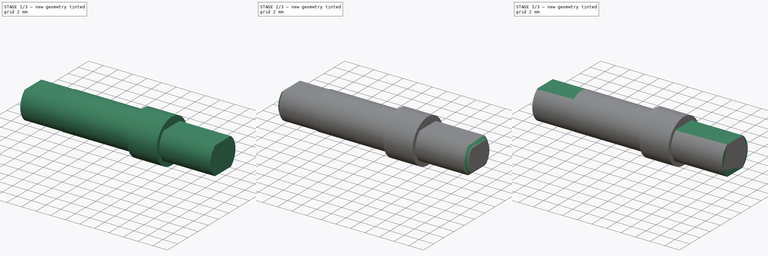
[diagram: build sequence overview — one tinted view per stage of 3, left to right]
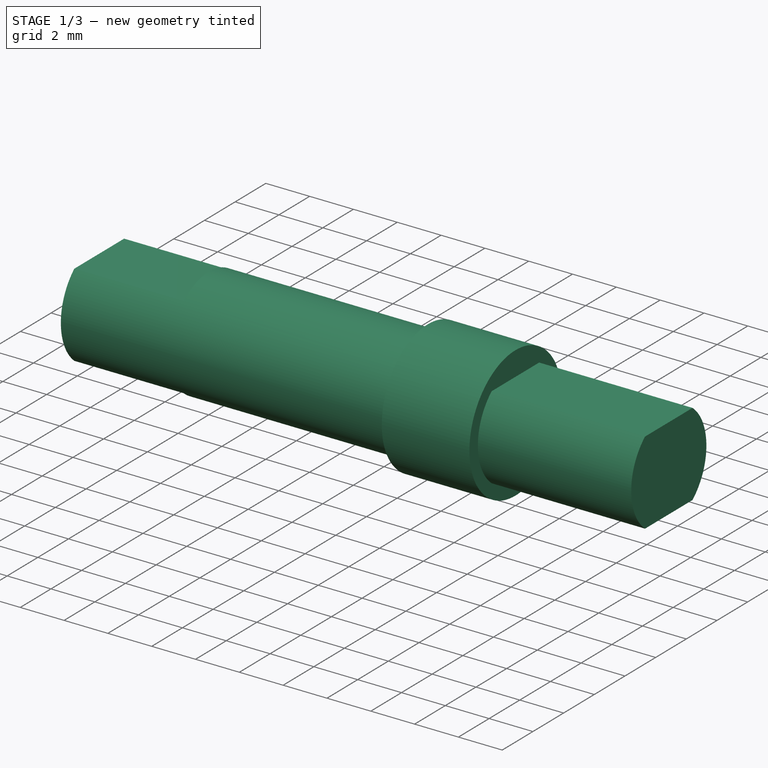
[diagram: stage 1 of 3 — iso view after this stage's code; geometry added in this stage tinted green]
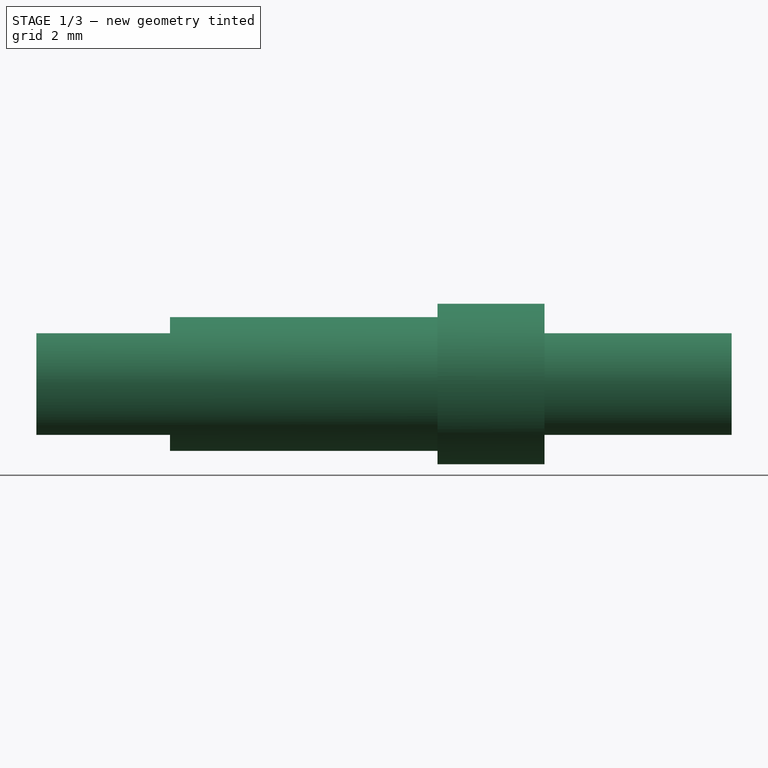
[diagram: stage 1 of 3 — front view after this stage's code; geometry added in this stage tinted green]
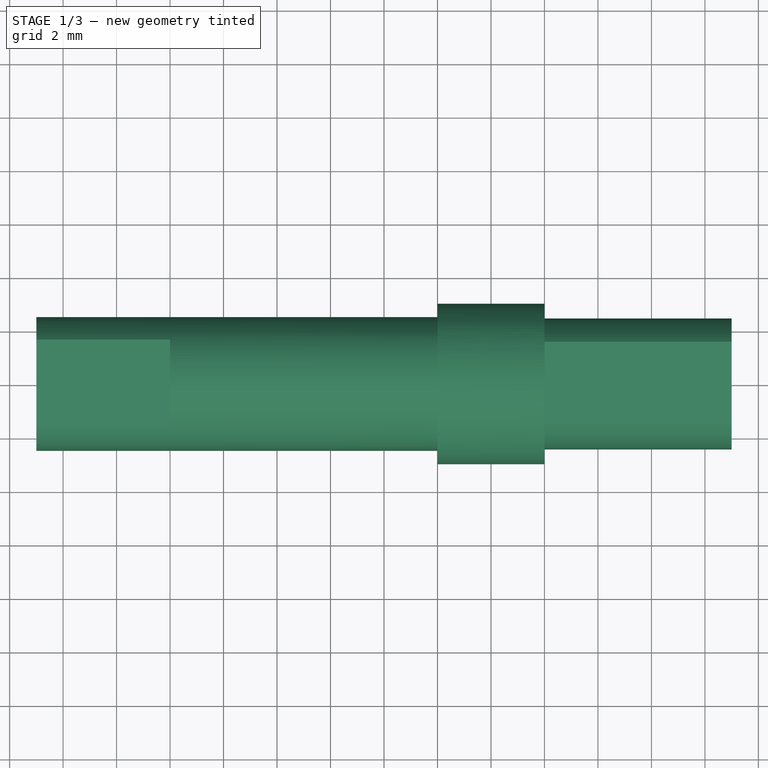
[diagram: stage 1 of 3 — top view after this stage's code; geometry added in this stage tinted green]
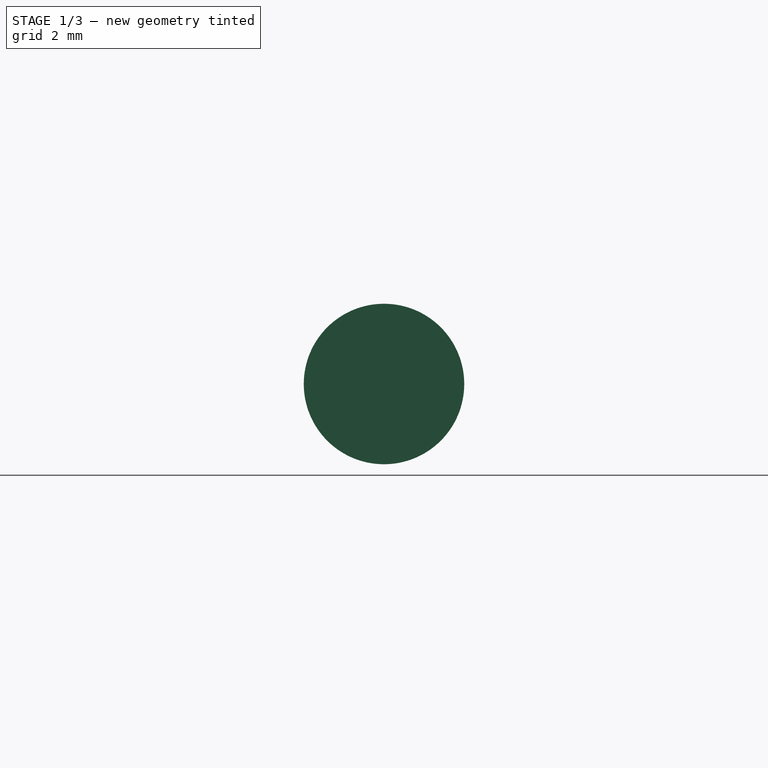
[diagram: stage 1 of 3 — right view after this stage's code; geometry added in this stage tinted green]
FCSTD DOCUMENT  (FreeCAD 2024.1R35694 (Git))
Label: shaft1
License: All rights reserved
LicenseURL: https://en.wikipedia.org/wiki/All_rights_reserved
objects: Sketcher::SketchObject×7, PartDesign::Pocket×5, PartDesign::Revolution×2, PartDesign::Body×2, PartDesign::Chamfer×1, PartDesign::Plane×1, App::Part×1
note: 26 computed .brp shape members not serialized (recipe doc carries the construction recipe); baked Part::Feature solids carry a one-line shape summary decoded from their .brp

FEATURE [PartDesign::Body] Body  label="shaft1_skel"
  Group = -> [Sketch,Revolution,Sketch001,Pocket,Sketch002,Pocket001]
  Origin = -> Origin001
  Tip = -> Pocket001
FEATURE [Sketcher::SketchObject] Sketch003
  FullyConstrained = true
  MapMode = 5
  Support = -> [XY_Plane002]
  sketch-geometry (8):
    g0: LineSegment StartX=7 StartY=0 StartZ=0 EndX=7 EndY=2.45 EndZ=0
    g1: LineSegment StartX=7 StartY=2.45 StartZ=0 EndX=0 EndY=2.45 EndZ=0
    g2: LineSegment StartX=0 StartY=2.45 StartZ=0 EndX=0 EndY=3 EndZ=0
    g3: LineSegment StartX=0 StartY=3 StartZ=0 EndX=-4 EndY=3 EndZ=0
    g4: LineSegment StartX=-4 StartY=3 StartZ=0 EndX=-4 EndY=2.5 EndZ=0
    g5: LineSegment StartX=-4 StartY=2.5 StartZ=0 EndX=-19 EndY=2.5 EndZ=0
    g6: LineSegment StartX=-19 StartY=2.5 StartZ=0 EndX=-19 EndY=0 EndZ=0
    g7: LineSegment StartX=-19 StartY=0 StartZ=0 EndX=7 EndY=0 EndZ=0
  constraints (24):
    c: PointOnObject(g0,g-1)
    c: Vertical(g0)
    c: Coincident(g0,g1)
    c: PointOnObject(g1,g-2)
    c: Horizontal(g1)
    c: Coincident(g1,g2)
    c: PointOnObject(g2,g-2)
    c: Coincident(g2,g3)
    c: Horizontal(g3)
    c: Coincident(g3,g4)
    c: Coincident(g4,g5)
    c: Horizontal(g5)
    c: Coincident(g5,g6)
    c: PointOnObject(g6,g-1)
    c: Coincident(g6,g7)
    c: Coincident(g7,g0)
    c: Vertical(g6)
    c: Vertical(g4)
    c: DistanceY(g-1,g0) = 2.45
    c: DistanceY(g-1,g2) = 3
    c: DistanceY(g6,g6) = 2.5
    c: DistanceX(g1,g1) = 7
    c: DistanceX(g3,g3) = 4
    c: DistanceX(g5,g5) = 15
FEATURE [PartDesign::Revolution] Revolution001
  Angle = 360
  Angle2 = 60
  Axis = (1,0,0)
  Base = (0,0,0)
  Profile = -> Sketch003
  ReferenceAxis = -> Sketch003 [H_Axis]
  Refine = true
  Type = 0
FEATURE [Sketcher::SketchObject] Sketch004
  FullyConstrained = true
  MapMode = 5
  Placement = pos=(-19,0,0) rot=(0.57735,-0.57735,-0.57735;2.0944rad)
  Support = -> [Revolution001]
  sketch-geometry (8):
    g0: LineSegment StartX=-5 StartY=6.9 StartZ=0 EndX=-5 EndY=1.9 EndZ=0
    g1: LineSegment StartX=-5 StartY=1.9 StartZ=0 EndX=5 EndY=1.9 EndZ=0
    g2: LineSegment StartX=5 StartY=1.9 StartZ=0 EndX=5 EndY=6.9 EndZ=0
    g3: LineSegment StartX=5 StartY=6.9 StartZ=0 EndX=-5 EndY=6.9 EndZ=0
    g4: LineSegment StartX=-5 StartY=-6.9 StartZ=0 EndX=5 EndY=-6.9 EndZ=0
    g5: LineSegment StartX=5 StartY=-6.9 StartZ=0 EndX=5 EndY=-1.9 EndZ=0
    g6: LineSegment StartX=5 StartY=-1.9 StartZ=0 EndX=-5 EndY=-1.9 EndZ=0
    g7: LineSegment StartX=-5 StartY=-1.9 StartZ=0 EndX=-5 EndY=-6.9 EndZ=0
  constraints (21):
    c: Coincident(g0,g1)
    c: Coincident(g1,g2)
    c: Coincident(g2,g3)
    c: Coincident(g3,g0)
    c: Vertical(g0)
    c: Vertical(g2)
    c: Horizontal(g3)
    c: Coincident(g4,g5)
    c: Coincident(g5,g6)
    c: Coincident(g6,g7)
    c: Coincident(g7,g4)
    c: Horizontal(g4)
    c: Vertical(g5)
    c: Vertical(g7)
    c: Symmetric(g1,g5,g-1)
    c: Symmetric(g0,g1,g-2)
    c: Symmetric(g6,g0,g-1)
    c: Equal(g2,g5)
    c: DistanceY(g5,g1) = 3.8
    c: DistanceY(g2,g2) = 5
    c: DistanceX(g3,g3) = 10
FEATURE [PartDesign::Pocket] Pocket002
  BaseFeature = -> Revolution001
  Direction = (1,0,0)
  Length = 5
  Length2 = 5
  Profile = -> Sketch004
  ReferenceAxis = -> Sketch004 [N_Axis]
  Refine = true
  Type = 0
FEATURE [Sketcher::SketchObject] Sketch005
  FullyConstrained = true
  MapMode = 5
  Placement = pos=(7,0,0) rot=(0.57735,0.57735,0.57735;2.0944rad)
  Support = -> [Pocket002]
  sketch-geometry (8):
    g0: LineSegment StartX=-5 StartY=1.9 StartZ=0 EndX=5 EndY=1.9 EndZ=0
    g1: LineSegment StartX=5 StartY=1.9 StartZ=0 EndX=5 EndY=6.9 EndZ=0
    g2: LineSegment StartX=5 StartY=6.9 StartZ=0 EndX=-5 EndY=6.9 EndZ=0
    g3: LineSegment StartX=-5 StartY=6.9 StartZ=0 EndX=-5 EndY=1.9 EndZ=0
    g4: LineSegment StartX=-5 StartY=-6.9 StartZ=0 EndX=5 EndY=-6.9 EndZ=0
    g5: LineSegment StartX=5 StartY=-6.9 StartZ=0 EndX=5 EndY=-1.9 EndZ=0
    g6: LineSegment StartX=5 StartY=-1.9 StartZ=0 EndX=-5 EndY=-1.9 EndZ=0
    g7: LineSegment StartX=-5 StartY=-1.9 StartZ=0 EndX=-5 EndY=-6.9 EndZ=0
  constraints (21):
    c: Coincident(g0,g1)
    c: Coincident(g1,g2)
    c: Coincident(g2,g3)
    c: Coincident(g3,g0)
    c: Horizontal(g0)
    c: Vertical(g1)
    c: Vertical(g3)
    c: Coincident(g4,g5)
    c: Coincident(g5,g6)
    c: Coincident(g6,g7)
    c: Coincident(g7,g4)
    c: Horizontal(g4)
    c: Vertical(g5)
    c: Vertical(g7)
    c: Symmetric(g0,g6,g-1)
    c: Symmetric(g0,g5,g-1)
    c: Symmetric(g2,g1,g-2)
    c: Equal(g1,g5)
    c: DistanceY(g5,g0) = 3.8
    c: DistanceY(g1,g1) = 5
    c: DistanceX(g2,g2) = 10
FEATURE [PartDesign::Pocket] Pocket003
  BaseFeature = -> Pocket002
  Direction = (-1,0,0)
  Length = 7
  Length2 = 5
  Profile = -> Sketch005
  ReferenceAxis = -> Sketch005 [N_Axis]
  Refine = true
  Type = 0
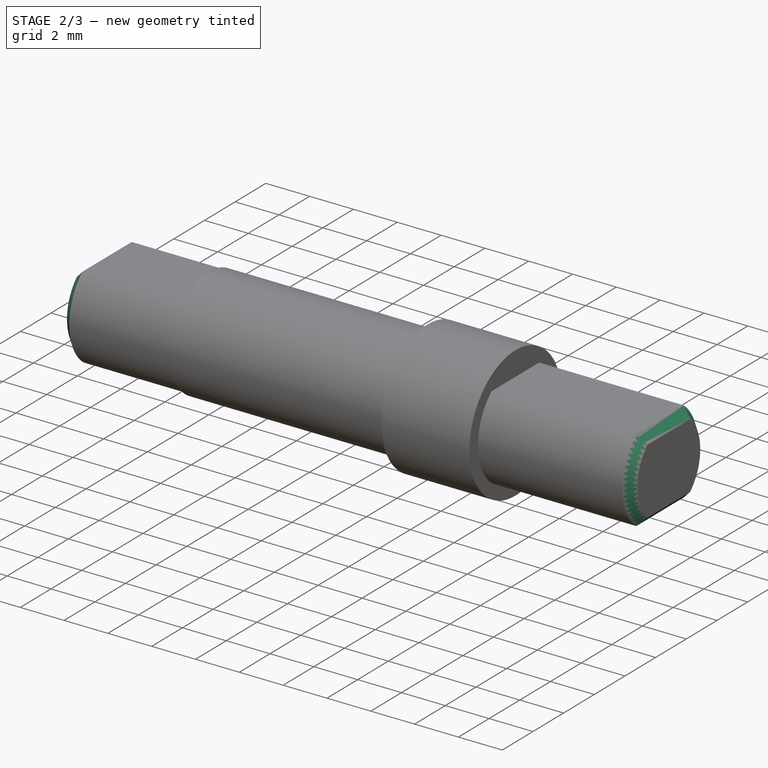
[diagram: stage 2 of 3 — iso view after this stage's code; geometry added in this stage tinted green]
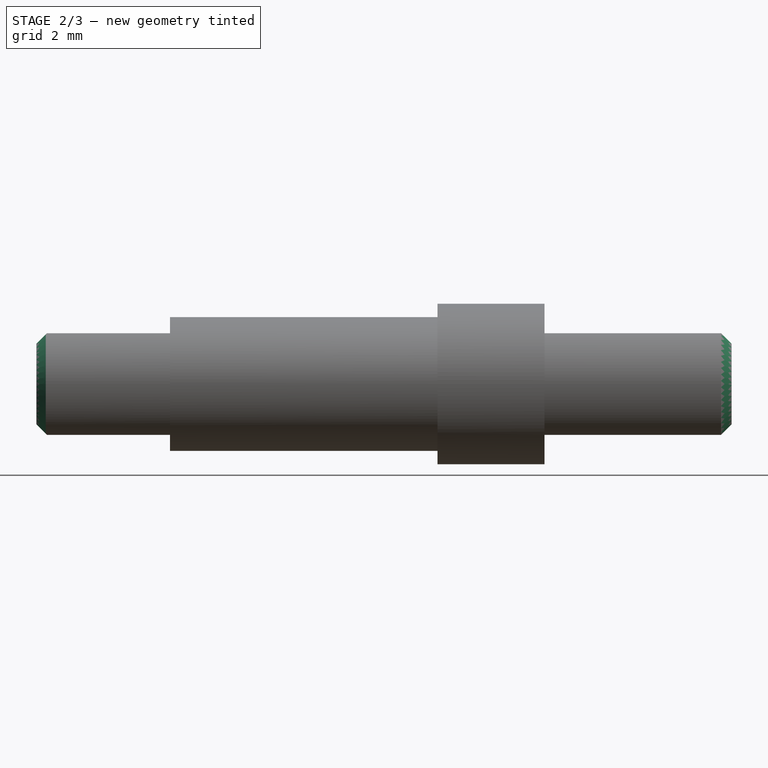
[diagram: stage 2 of 3 — front view after this stage's code; geometry added in this stage tinted green]
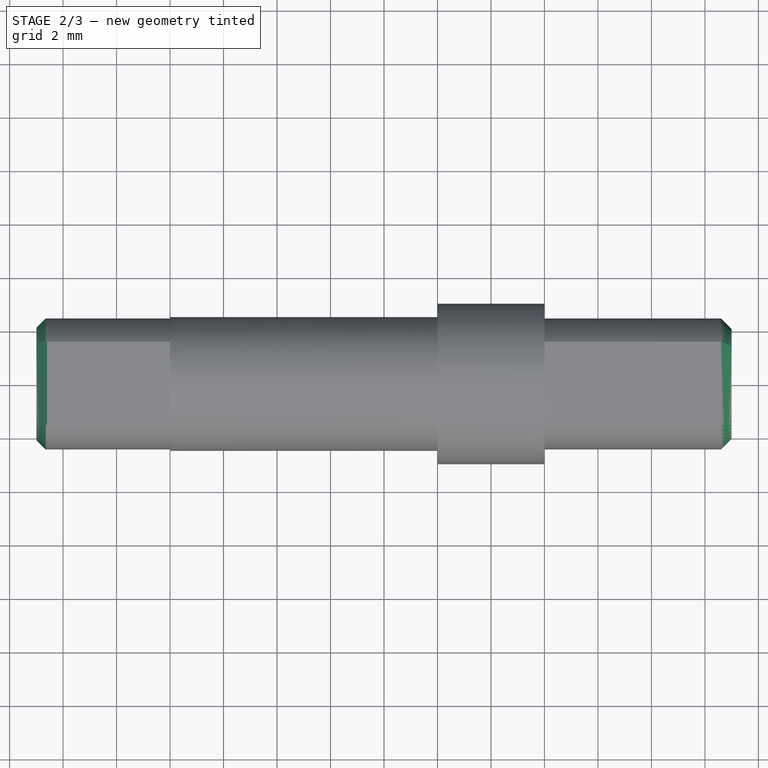
[diagram: stage 2 of 3 — top view after this stage's code; geometry added in this stage tinted green]
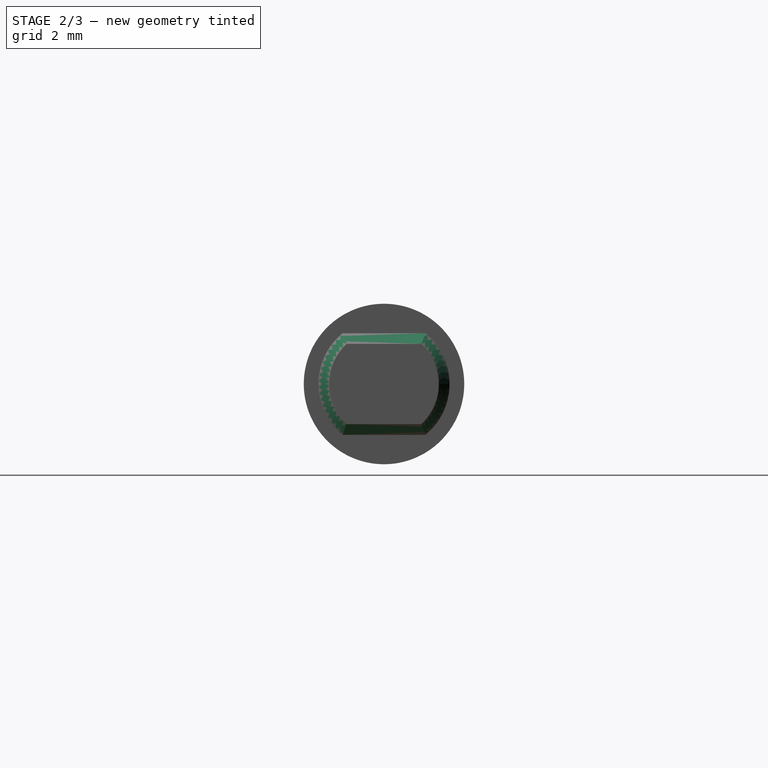
[diagram: stage 2 of 3 — right view after this stage's code; geometry added in this stage tinted green]
FEATURE [PartDesign::Chamfer] Chamfer
  Angle = 15
  Base = -> Pocket003 [Edge30,Edge28,Edge32,Edge29,Edge31,Edge19,Edge18,Edge10,Edge14,Edge20]
  BaseFeature = -> Pocket003
  ChamferType = 0
  FlipDirection = false
  Refine = true
  Size = 0.4
  Size2 = 0.2
  SupportTransform = false
  UseAllEdges = false
FEATURE [PartDesign::Plane] DatumPlane
  Length = 60
  MapMode = 5
  Placement = pos=(-14,0,0) rot=(0.57735,-0.57735,-0.57735;2.0944rad)
  ResizeMode = 0
  Support = -> [Chamfer]
  Width = 60
FEATURE [Sketcher::SketchObject] Sketch006
  FullyConstrained = true
  MapMode = 5
  Placement = pos=(-14,0,0) rot=(0.57735,-0.57735,-0.57735;2.0944rad)
  Support = -> [DatumPlane]
  sketch-geometry (2):
    g0: Circle CenterX=0 CenterY=0 CenterZ=0 NormalX=0 NormalY=0 NormalZ=1 AngleXU=0 Radius=2.45
    g1: Circle CenterX=0 CenterY=0 CenterZ=0 NormalX=0 NormalY=0 NormalZ=1 AngleXU=0 Radius=3
  constraints (4):
    c: Coincident(g0,g-1)
    c: Coincident(g1,g0)
    c: Diameter(g0) = 4.9
    c: Diameter(g1) = 6
FEATURE [PartDesign::Pocket] Pocket004
  BaseFeature = -> Chamfer
  Direction = (1,0,0)
  Length = 5
  Length2 = 5
  Profile = -> Sketch006
  ReferenceAxis = -> Sketch006 [N_Axis]
  Refine = true
  Reversed = true
  Type = 1
FEATURE [PartDesign::Body] Body001  label="shaft1s"
  Group = -> [Sketch003,Revolution001,Sketch004,Pocket002,Sketch005,Pocket003,Chamfer,DatumPlane,Sketch006,Pocket004]
  Origin = -> Origin002
  Tip = -> Pocket004
FEATURE [App::Part] Part  label="shaft1"
  Group = -> [Body,Body001]
  Origin = -> Origin
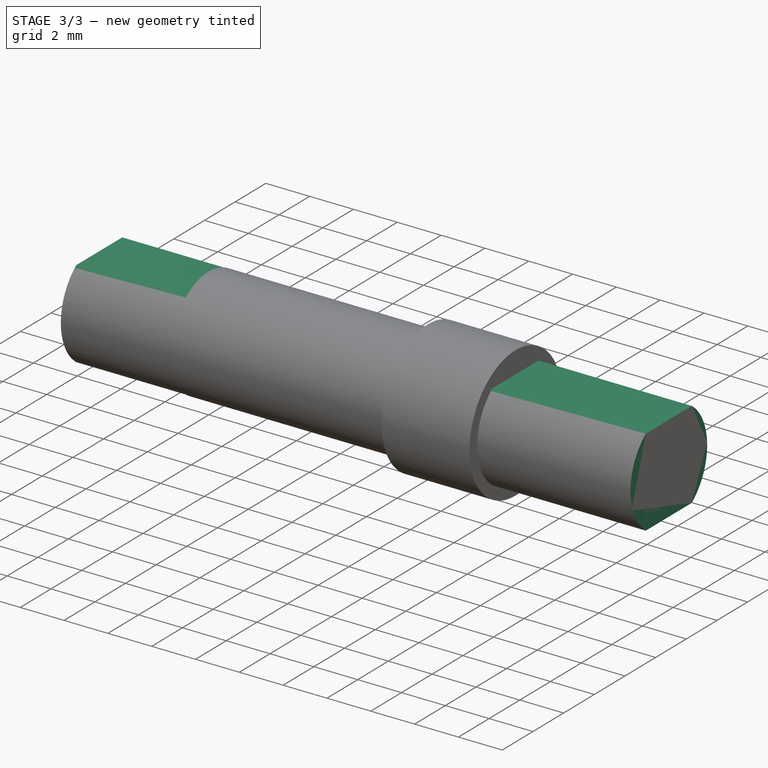
[diagram: stage 3 of 3 — iso view after this stage's code; geometry added in this stage tinted green]
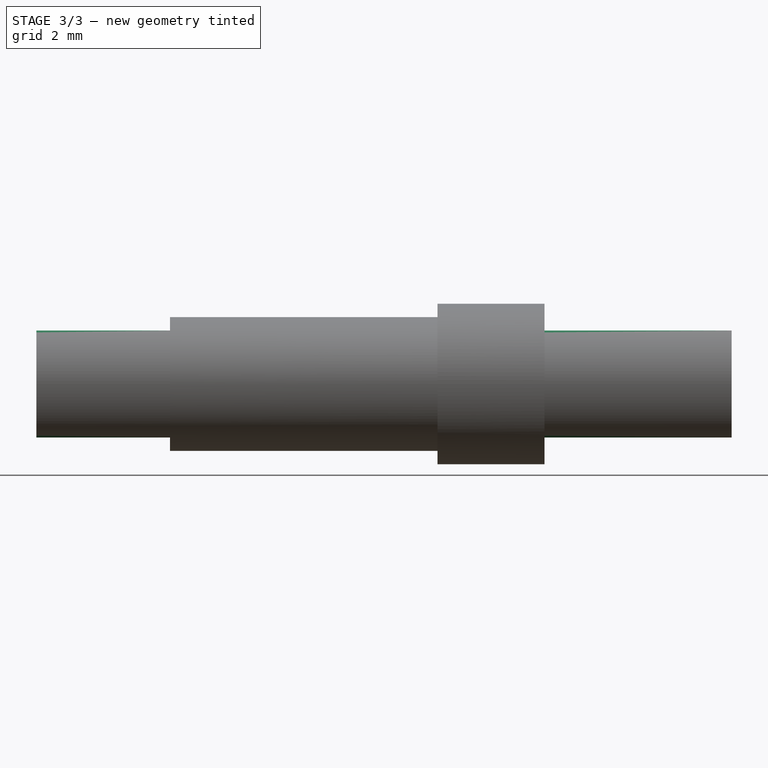
[diagram: stage 3 of 3 — front view after this stage's code; geometry added in this stage tinted green]
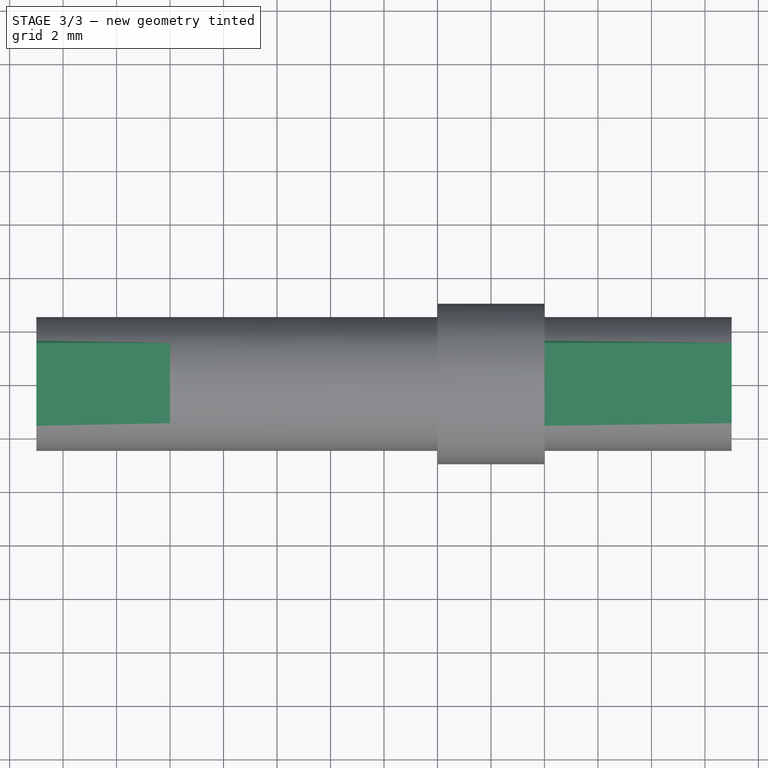
[diagram: stage 3 of 3 — top view after this stage's code; geometry added in this stage tinted green]
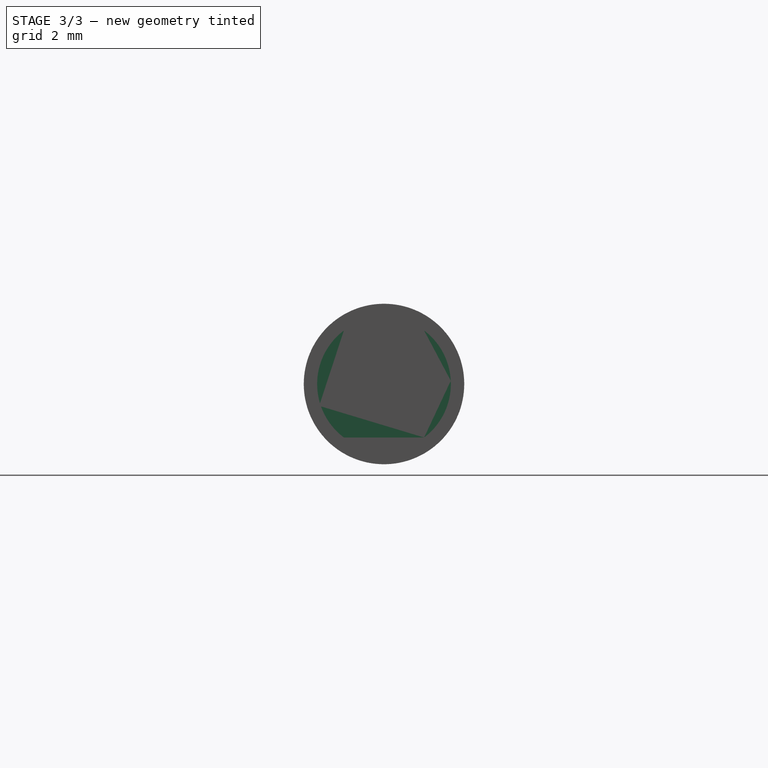
[diagram: stage 3 of 3 — right view after this stage's code; geometry added in this stage tinted green]
FEATURE [Sketcher::SketchObject] Sketch
  FullyConstrained = true
  MapMode = 5
  Support = -> [XY_Plane001]
  sketch-geometry (8):
    g0: LineSegment StartX=7 StartY=0 StartZ=0 EndX=7 EndY=2.5 EndZ=0
    g1: LineSegment StartX=7 StartY=2.5 StartZ=0 EndX=0 EndY=2.5 EndZ=0
    g2: LineSegment StartX=0 StartY=2.5 StartZ=0 EndX=0 EndY=3 EndZ=0
    g3: LineSegment StartX=0 StartY=3 StartZ=0 EndX=-4 EndY=3 EndZ=0
    g4: LineSegment StartX=-4 StartY=3 StartZ=0 EndX=-4 EndY=2.5 EndZ=0
    g5: LineSegment StartX=-4 StartY=2.5 StartZ=0 EndX=-19 EndY=2.5 EndZ=0
    g6: LineSegment StartX=-19 StartY=2.5 StartZ=0 EndX=-19 EndY=0 EndZ=0
    g7: LineSegment StartX=-19 StartY=0 StartZ=0 EndX=7 EndY=0 EndZ=0
  constraints (24):
    c: PointOnObject(g0,g-1)
    c: Vertical(g0)
    c: Coincident(g0,g1)
    c: PointOnObject(g1,g-2)
    c: Horizontal(g1)
    c: Coincident(g1,g2)
    c: PointOnObject(g2,g-2)
    c: Coincident(g2,g3)
    c: Horizontal(g3)
    c: Coincident(g3,g4)
    c: Coincident(g4,g5)
    c: Horizontal(g5)
    c: Coincident(g5,g6)
    c: PointOnObject(g6,g-1)
    c: Coincident(g6,g7)
    c: Coincident(g7,g0)
    c: Vertical(g6)
    c: Vertical(g4)
    c: DistanceY(g-1,g0) = 2.5
    c: DistanceY(g-1,g2) = 3
    c: DistanceY(g6,g6) = 2.5
    c: DistanceX(g1,g1) = 7
    c: DistanceX(g3,g3) = 4
    c: DistanceX(g5,g5) = 15
FEATURE [PartDesign::Revolution] Revolution
  Angle = 360
  Angle2 = 60
  Axis = (1,0,0)
  Base = (0,0,0)
  Profile = -> Sketch
  ReferenceAxis = -> Sketch [H_Axis]
  Refine = true
  Type = 0
FEATURE [Sketcher::SketchObject] Sketch001
  FullyConstrained = true
  MapMode = 5
  Placement = pos=(-19,0,0) rot=(0.57735,-0.57735,-0.57735;2.0944rad)
  Support = -> [Revolution]
  sketch-geometry (8):
    g0: LineSegment StartX=-5 StartY=7 StartZ=0 EndX=-5 EndY=2 EndZ=0
    g1: LineSegment StartX=-5 StartY=2 StartZ=0 EndX=5 EndY=2 EndZ=0
    g2: LineSegment StartX=5 StartY=2 StartZ=0 EndX=5 EndY=7 EndZ=0
    g3: LineSegment StartX=5 StartY=7 StartZ=0 EndX=-5 EndY=7 EndZ=0
    g4: LineSegment StartX=-5 StartY=-7 StartZ=0 EndX=5 EndY=-7 EndZ=0
    g5: LineSegment StartX=5 StartY=-7 StartZ=0 EndX=5 EndY=-2 EndZ=0
    g6: LineSegment StartX=5 StartY=-2 StartZ=0 EndX=-5 EndY=-2 EndZ=0
    g7: LineSegment StartX=-5 StartY=-2 StartZ=0 EndX=-5 EndY=-7 EndZ=0
  constraints (21):
    c: Coincident(g0,g1)
    c: Coincident(g1,g2)
    c: Coincident(g2,g3)
    c: Coincident(g3,g0)
    c: Vertical(g0)
    c: Vertical(g2)
    c: Horizontal(g3)
    c: Coincident(g4,g5)
    c: Coincident(g5,g6)
    c: Coincident(g6,g7)
    c: Coincident(g7,g4)
    c: Horizontal(g4)
    c: Vertical(g5)
    c: Vertical(g7)
    c: Symmetric(g1,g5,g-1)
    c: Symmetric(g0,g1,g-2)
    c: Symmetric(g6,g0,g-1)
    c: Equal(g2,g5)
    c: DistanceY(g5,g1) = 4
    c: DistanceY(g2,g2) = 5
    c: DistanceX(g3,g3) = 10
FEATURE [PartDesign::Pocket] Pocket
  BaseFeature = -> Revolution
  Direction = (1,0,0)
  Length = 5
  Length2 = 5
  Profile = -> Sketch001
  ReferenceAxis = -> Sketch001 [N_Axis]
  Refine = true
  Type = 0
FEATURE [Sketcher::SketchObject] Sketch002
  FullyConstrained = true
  MapMode = 5
  Placement = pos=(7,0,0) rot=(0.57735,0.57735,0.57735;2.0944rad)
  Support = -> [Pocket]
  sketch-geometry (8):
    g0: LineSegment StartX=-5 StartY=2 StartZ=0 EndX=5 EndY=2 EndZ=0
    g1: LineSegment StartX=5 StartY=2 StartZ=0 EndX=5 EndY=7 EndZ=0
    g2: LineSegment StartX=5 StartY=7 StartZ=0 EndX=-5 EndY=7 EndZ=0
    g3: LineSegment StartX=-5 StartY=7 StartZ=0 EndX=-5 EndY=2 EndZ=0
    g4: LineSegment StartX=-5 StartY=-7 StartZ=0 EndX=5 EndY=-7 EndZ=0
    g5: LineSegment StartX=5 StartY=-7 StartZ=0 EndX=5 EndY=-2 EndZ=0
    g6: LineSegment StartX=5 StartY=-2 StartZ=0 EndX=-5 EndY=-2 EndZ=0
    g7: LineSegment StartX=-5 StartY=-2 StartZ=0 EndX=-5 EndY=-7 EndZ=0
  constraints (21):
    c: Coincident(g0,g1)
    c: Coincident(g1,g2)
    c: Coincident(g2,g3)
    c: Coincident(g3,g0)
    c: Horizontal(g0)
    c: Vertical(g1)
    c: Vertical(g3)
    c: Coincident(g4,g5)
    c: Coincident(g5,g6)
    c: Coincident(g6,g7)
    c: Coincident(g7,g4)
    c: Horizontal(g4)
    c: Vertical(g5)
    c: Vertical(g7)
    c: Symmetric(g0,g6,g-1)
    c: Symmetric(g0,g5,g-1)
    c: Symmetric(g2,g1,g-2)
    c: Equal(g1,g5)
    c: DistanceY(g5,g0) = 4
    c: DistanceY(g1,g1) = 5
    c: DistanceX(g2,g2) = 10
FEATURE [PartDesign::Pocket] Pocket001
  BaseFeature = -> Pocket
  Direction = (-1,0,0)
  Length = 7
  Length2 = 5
  Profile = -> Sketch002
  ReferenceAxis = -> Sketch002 [N_Axis]
  Refine = true
  Type = 0
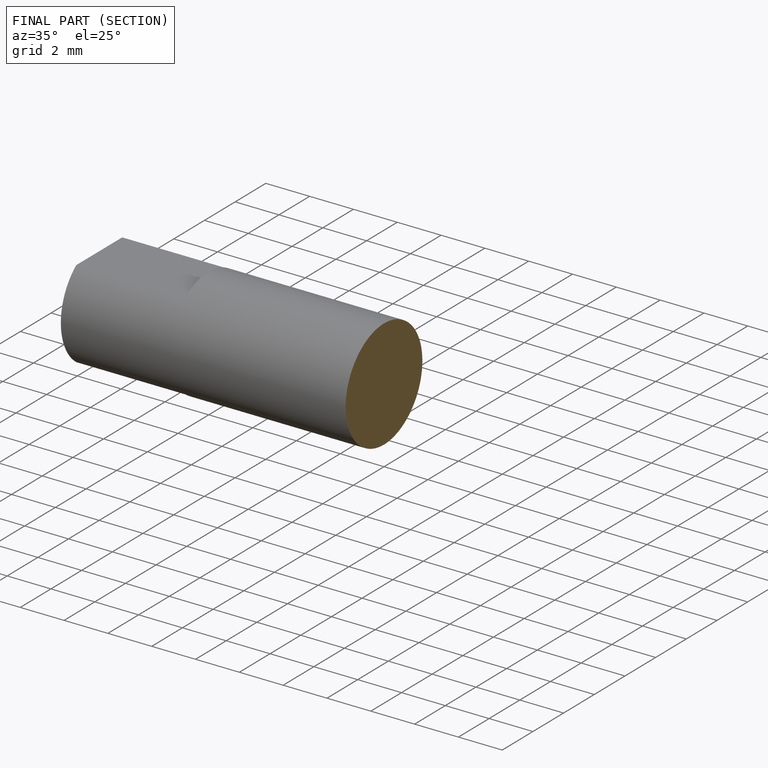
[diagram: finished part — half-section view (interior)]
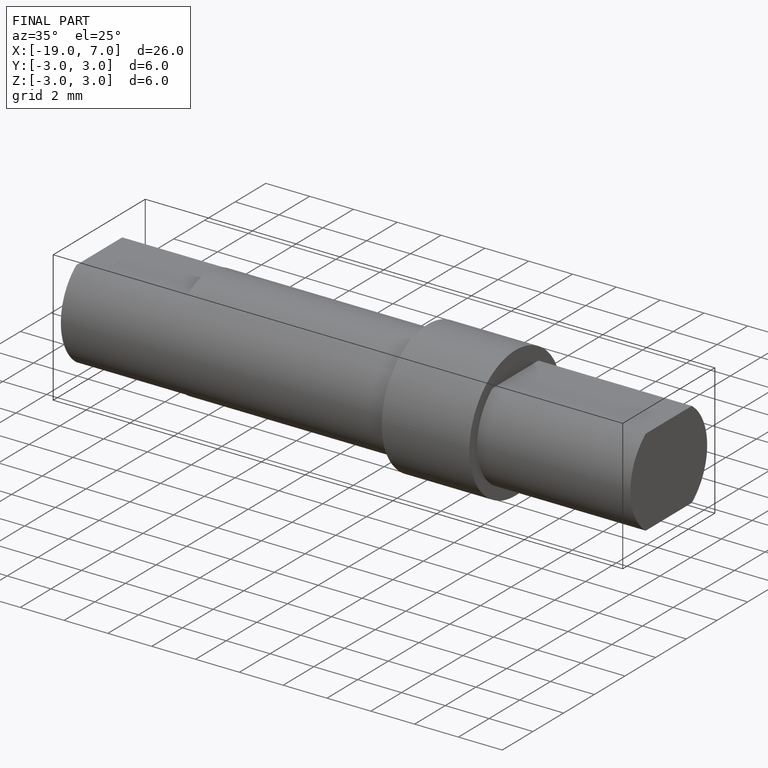
[diagram: finished part — iso view with bounding-box wireframe]
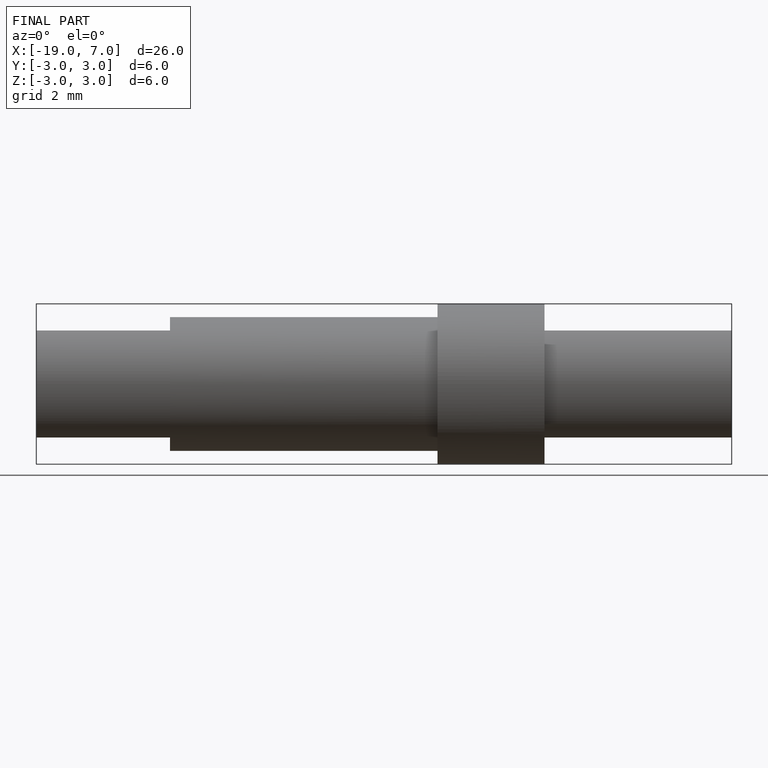
[diagram: finished part — front view with bounding-box wireframe]
